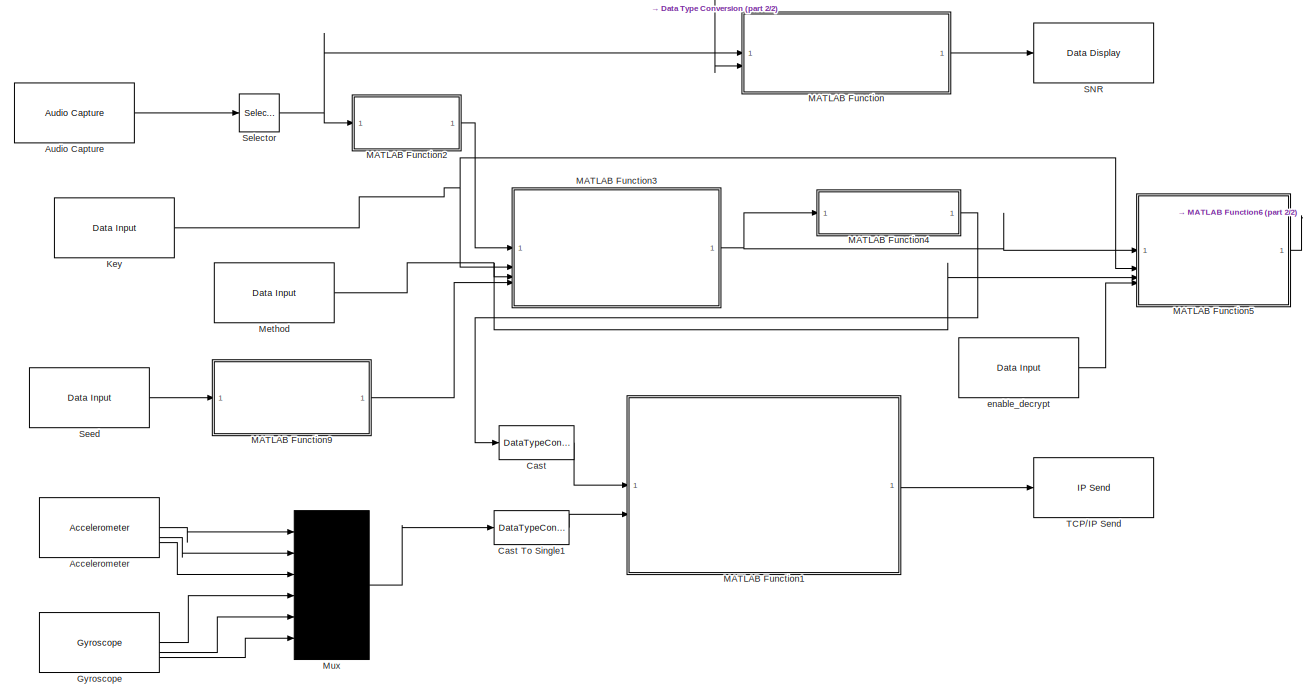
[diagram: root canvas - part 1/2, most of the canvas]
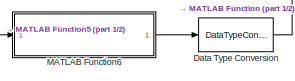
[diagram: root canvas - part 2/2, middle right region]
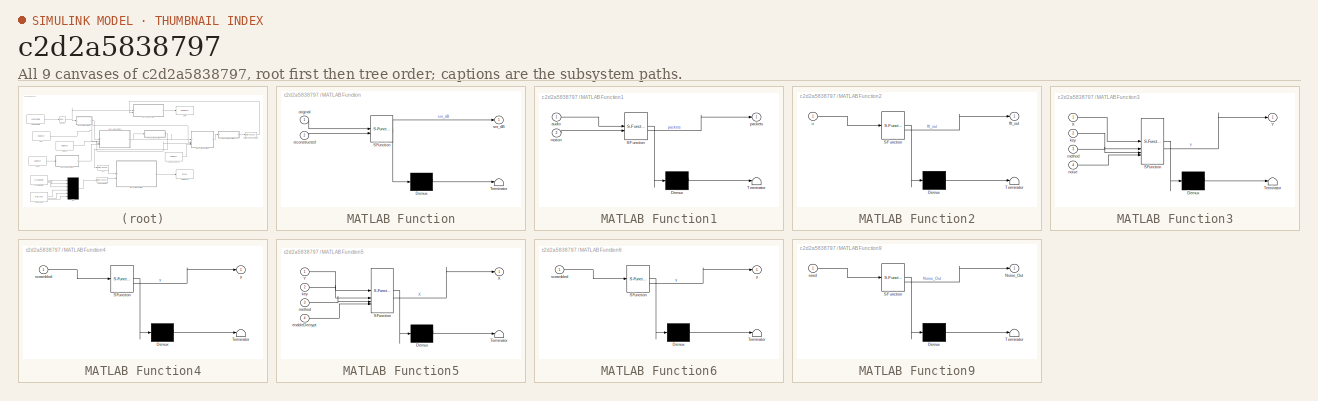
[diagram: thumbnail index - all 9 canvases of the model, root first then tree order]
MODEL slx_c2d2a5838797
KIND model
CONFIG AbsTol = auto
CONFIG EnableMultiTasking = off
CONFIG FixedStep = auto
CONFIG MaxStep = auto
CONFIG MinStep = auto
CONFIG RelTol = 1e-3
CONFIG SampleTimeConstraint = Unconstrained
CONFIG SolverName = FixedStepAuto
CONFIG StartTime = 0.0
CONFIG StopTime = 7.00
BLOCK [Reference] Accelerometer  REF=androidsensorlib/Accelerometer
  SourceBlock = androidsensorlib/Accelerometer
  SourceType = codertarget.internal.androidAccelerometer
BLOCK [Reference] Audio Capture  REF=androidaudiovideolib/Audio Capture
  SourceBlock = androidaudiovideolib/Audio Capture
  SourceType = codertarget.internal.androidAudioCapture
BLOCK [DataTypeConversion] Cast
  OutDataTypeStr = int16
  RndMeth = Floor
  SaturateOnIntegerOverflow = off
BLOCK [DataTypeConversion] Cast To Single1
  OutDataTypeStr = single
  RndMeth = Floor
  SaturateOnIntegerOverflow = off
BLOCK [DataTypeConversion] Data Type Conversion
  OutDataTypeStr = int16
  RndMeth = Floor
  SaturateOnIntegerOverflow = off
BLOCK [Reference] Gyroscope  REF=androidsensorlib/Gyroscope
  SourceBlock = androidsensorlib/Gyroscope
  SourceType = codertarget.internal.androidGyroscope
BLOCK [Reference] Key  REF=androiduilib/Data Input
  SourceBlock = androiduilib/Data Input
  SourceType = codertarget.internal.androidDataInput
BLOCK [SubSystem] MATLAB Function
  ErrorFcn = Stateflow.Translate.translate
  PermitHierarchicalResolution = ExplicitOnly
  SFBlockType = MATLAB Function
  TreatAsAtomicUnit = on
BLOCK [Demux] MATLAB Function/ Demux 
  Outputs = 1
BLOCK [S-Function] MATLAB Function/ SFunction 
  EnableBusSupport = on
  FunctionName = sf_sfun
  PortCounts = [2 2]
  SFcnIsStateOwnerBlock = off
  SFunctionDeploymentMode = off
  Tag = Stateflow S-Function 2
BLOCK [Terminator] MATLAB Function/ Terminator 
BLOCK [Inport] MATLAB Function/original
BLOCK [Inport] MATLAB Function/reconstructed
  Port = 2
BLOCK [Outport] MATLAB Function/snr_dB
BLOCK [SubSystem] MATLAB Function1
  ErrorFcn = Stateflow.Translate.translate
  LibrarySourceBlock = simulink/User-Defined\nFunctions/MATLAB Function
  PermitHierarchicalResolution = ExplicitOnly
  SFBlockType = MATLAB Function
  TreatAsAtomicUnit = on
BLOCK [Demux] MATLAB Function1/ Demux 
  Outputs = 1
BLOCK [S-Function] MATLAB Function1/ SFunction 
  EnableBusSupport = on
  FunctionName = sf_sfun
  PortCounts = [2 2]
  SFcnIsStateOwnerBlock = off
  SFunctionDeploymentMode = off
  Tag = Stateflow S-Function 1
BLOCK [Terminator] MATLAB Function1/ Terminator 
BLOCK [Inport] MATLAB Function1/audio
BLOCK [Inport] MATLAB Function1/motion
  Port = 2
BLOCK [Outport] MATLAB Function1/packets
BLOCK [SubSystem] MATLAB Function2
  ErrorFcn = Stateflow.Translate.translate
  PermitHierarchicalResolution = ExplicitOnly
  SFBlockType = MATLAB Function
  TreatAsAtomicUnit = on
BLOCK [Demux] MATLAB Function2/ Demux 
  Outputs = 1
BLOCK [S-Function] MATLAB Function2/ SFunction 
  EnableBusSupport = on
  FunctionName = sf_sfun
  PortCounts = [1 2]
  SFcnIsStateOwnerBlock = off
  SFunctionDeploymentMode = off
  Tag = Stateflow S-Function 6
BLOCK [Terminator] MATLAB Function2/ Terminator 
BLOCK [Outport] MATLAB Function2/fft_out
BLOCK [Inport] MATLAB Function2/u
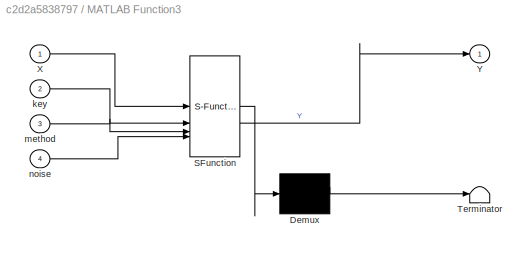
BLOCK [SubSystem] MATLAB Function3
  ErrorFcn = Stateflow.Translate.translate
  PermitHierarchicalResolution = ExplicitOnly
  SFBlockType = MATLAB Function
  TreatAsAtomicUnit = on
BLOCK [Demux] MATLAB Function3/ Demux 
  Outputs = 1
BLOCK [S-Function] MATLAB Function3/ SFunction 
  EnableBusSupport = on
  FunctionName = sf_sfun
  PortCounts = [4 2]
  SFcnIsStateOwnerBlock = off
  SFunctionDeploymentMode = off
  Tag = Stateflow S-Function 7
BLOCK [Terminator] MATLAB Function3/ Terminator 
BLOCK [Inport] MATLAB Function3/X
BLOCK [Outport] MATLAB Function3/Y
BLOCK [Inport] MATLAB Function3/key
  Port = 2
BLOCK [Inport] MATLAB Function3/method
  Port = 3
BLOCK [Inport] MATLAB Function3/noise
  Port = 4
BLOCK [SubSystem] MATLAB Function4
  ErrorFcn = Stateflow.Translate.translate
  PermitHierarchicalResolution = ExplicitOnly
  SFBlockType = MATLAB Function
  TreatAsAtomicUnit = on
BLOCK [Demux] MATLAB Function4/ Demux 
  Outputs = 1
BLOCK [S-Function] MATLAB Function4/ SFunction 
  EnableBusSupport = on
  FunctionName = sf_sfun
  PortCounts = [1 2]
  SFcnIsStateOwnerBlock = off
  SFunctionDeploymentMode = off
  Tag = Stateflow S-Function 8
BLOCK [Terminator] MATLAB Function4/ Terminator 
BLOCK [Inport] MATLAB Function4/scrambled
BLOCK [Outport] MATLAB Function4/y
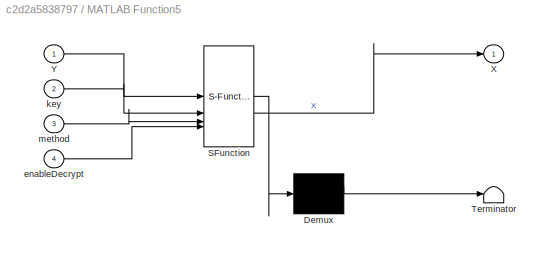
BLOCK [SubSystem] MATLAB Function5
  ErrorFcn = Stateflow.Translate.translate
  PermitHierarchicalResolution = ExplicitOnly
  SFBlockType = MATLAB Function
  TreatAsAtomicUnit = on
BLOCK [Demux] MATLAB Function5/ Demux 
  Outputs = 1
BLOCK [S-Function] MATLAB Function5/ SFunction 
  EnableBusSupport = on
  FunctionName = sf_sfun
  PortCounts = [4 2]
  SFcnIsStateOwnerBlock = off
  SFunctionDeploymentMode = off
  Tag = Stateflow S-Function 3
BLOCK [Terminator] MATLAB Function5/ Terminator 
BLOCK [Outport] MATLAB Function5/X
BLOCK [Inport] MATLAB Function5/Y
BLOCK [Inport] MATLAB Function5/enableDecrypt
  Port = 4
BLOCK [Inport] MATLAB Function5/key
  Port = 2
BLOCK [Inport] MATLAB Function5/method
  Port = 3
BLOCK [SubSystem] MATLAB Function6
  ErrorFcn = Stateflow.Translate.translate
  PermitHierarchicalResolution = ExplicitOnly
  SFBlockType = MATLAB Function
  TreatAsAtomicUnit = on
BLOCK [Demux] MATLAB Function6/ Demux 
  Outputs = 1
BLOCK [S-Function] MATLAB Function6/ SFunction 
  EnableBusSupport = on
  FunctionName = sf_sfun
  PortCounts = [1 2]
  SFcnIsStateOwnerBlock = off
  SFunctionDeploymentMode = off
  Tag = Stateflow S-Function 4
BLOCK [Terminator] MATLAB Function6/ Terminator 
BLOCK [Inport] MATLAB Function6/scrambled
BLOCK [Outport] MATLAB Function6/y
BLOCK [SubSystem] MATLAB Function9
  ErrorFcn = Stateflow.Translate.translate
  PermitHierarchicalResolution = ExplicitOnly
  SFBlockType = MATLAB Function
  TreatAsAtomicUnit = on
BLOCK [Demux] MATLAB Function9/ Demux 
  Outputs = 1
BLOCK [S-Function] MATLAB Function9/ SFunction 
  EnableBusSupport = on
  FunctionName = sf_sfun
  PortCounts = [1 2]
  SFcnIsStateOwnerBlock = off
  SFunctionDeploymentMode = off
  Tag = Stateflow S-Function 10
BLOCK [Terminator] MATLAB Function9/ Terminator 
BLOCK [Outport] MATLAB Function9/Noise_Out
BLOCK [Inport] MATLAB Function9/seed
BLOCK [Reference] Method  REF=androiduilib/Data Input
  SourceBlock = androiduilib/Data Input
  SourceType = codertarget.internal.androidDataInput
BLOCK [Mux] Mux
  DisplayOption = bar
  Inputs = 6
BLOCK [Reference] SNR  REF=androiduilib/Data Display
  SourceBlock = androiduilib/Data Display
  SourceType = codertarget.internal.androidDataDisplay
BLOCK [Reference] Seed  REF=androiduilib/Data Input
  SourceBlock = androiduilib/Data Input
  SourceType = codertarget.internal.androidDataInput
BLOCK [Selector] Selector
  IndexOptions = Select all,Index vector (dialog)
  Indices = [1 3],1
  InputPortWidth = 3
  NumberOfDimensions = 2
  OutputSizes = 1,1
BLOCK [Reference] TCP//IP Send  REF=androidcommunicationlib/TCP//IP Send
  SourceBlock = androidcommunicationlib/TCP//IP Send
  SourceType = codertarget.internal.androidTCPSend
BLOCK [Reference] enable_decrypt  REF=androiduilib/Data Input
  SourceBlock = androiduilib/Data Input
  SourceType = codertarget.internal.androidDataInput
LINE Accelerometer:1 -> Mux:1
LINE Accelerometer:2 -> Mux:2
LINE Accelerometer:3 -> Mux:3
LINE Audio Capture:1 -> Selector:1
LINE Cast To Single1:1 -> MATLAB Function1:2
LINE Cast:1 -> MATLAB Function1:1
LINE Data Type Conversion:1 -> MATLAB Function:2
LINE Gyroscope:1 -> Mux:4
LINE Gyroscope:2 -> Mux:5
LINE Gyroscope:3 -> Mux:6
NET Key:1 -> MATLAB Function3:2, MATLAB Function5:2
LINE MATLAB Function1:1 -> TCP//IP Send:1
LINE MATLAB Function2:1 -> MATLAB Function3:1
NET MATLAB Function3:1 -> MATLAB Function4:1, MATLAB Function5:1
LINE MATLAB Function4:1 -> Cast:1
LINE MATLAB Function5:1 -> MATLAB Function6:1
LINE MATLAB Function6:1 -> Data Type Conversion:1
LINE MATLAB Function9:1 -> MATLAB Function3:4
LINE MATLAB Function:1 -> SNR:1
NET Method:1 -> MATLAB Function3:3, MATLAB Function5:3
LINE Mux:1 -> Cast To Single1:1
LINE Seed:1 -> MATLAB Function9:1
NET Selector:1 -> MATLAB Function2:1, MATLAB Function:1
LINE enable_decrypt:1 -> MATLAB Function5:4
note: NET lines group one-source signal fan-out (src -> all destinations, sorted); 1:1 wires keep LINE
CHART MATLAB Function1 states=1 transitions=1
  STATE_LABEL 'eML_blk_kernel()'
  STATE_LABEL "SCRIPT:\nfunction packets = packing(audio, motion)\nassert(isa(motion,'single') && numel(motion)==6);\nassert(isa(audio,'int16') && numel(audio)==4410);\n\npackets = zeros(8844,1,'uint8');   % total = 24 + 8820\n\npackets(1:24)    = typecast(motion(:), 'uint8').';        \npackets(25:8844) = typecast(audio(:), 'uint8').';\nend\n"
CHART MATLAB Function states=1 transitions=1
  STATE_LABEL 'eML_blk_kernel()'
  STATE_LABEL 'SCRIPT:\nfunction snr_dB = computeSNR(original, reconstructed)\n\n    N = min(numel(original), numel(reconstructed));\n    x = double(original(1:N));\n    y = double(reconstructed(1:N));\n    noise = x - y;\n\n    Ps = mean(abs(x).^2);       % Signal Power\n    Pn = mean(abs(noise).^2);   % Noise Power\n\n    Ps = max(Ps, 1e-12);\n    Pn = max(Pn, 1e-12);\n\n    ratio = Ps / Pn;\n    snr_dB = 10 * log10(ratio);\n...<+30ch>'
CHART MATLAB Function5 states=1 transitions=1
  STATE_LABEL 'eML_blk_kernel()'
  STATE_LABEL "SCRIPT:\nfunction X = decryptAudio_FFT(Y, key, method, enableDecrypt)\n    [N, C] = size(Y);\n    X = complex(zeros(N, C, 'like', Y));\n    \n    if nargin < 4 || enableDecrypt == 0\n        X = Y; return;\n    end\n    \n    if ischar(key) || isstring(key)\n        keyChar = double(char(key));\n        keynum = sum(keyChar .* (1:length(keyChar))); \n    else\n        keynum = double(key);\n    end\n    seedVal ...<+1822ch>"
CHART MATLAB Function6 states=1 transitions=1
  STATE_LABEL 'eML_blk_kernel()'
  STATE_LABEL 'SCRIPT:\nfunction y = IFFT(scrambled)\n    N = length(scrambled);\n    scrambled(2:N/2) = conj(scrambled(N:-1:N/2+2));\n    Channel = ifft(scrambled);\n    y = real(Channel);\nend'
CHART MATLAB Function2 states=1 transitions=1
  STATE_LABEL 'eML_blk_kernel()'
  STATE_LABEL 'SCRIPT:\nfunction fft_out = FFT(u)\n    u = u(:,1);\n    fft_out = fft(double(u));\nend'
CHART MATLAB Function3 states=1 transitions=1
  STATE_LABEL 'eML_blk_kernel()'
  STATE_LABEL 'SCRIPT:\nfunction Y = encryptAudio_Sender(X, key, method, noise)\n    [N, C] = size(X);\n    \n    if size(noise, 1) ~= N\n        noise_safe = complex(zeros(N, C)); \n    else\n        noise_safe = noise;\n    end\n\n    if ischar(key) || isstring(key)\n        keyChar = double(char(key));\n        keynum = sum(keyChar .* (1:length(keyChar))); \n    else\n        keynum = double(key);\n    end\n    seedVal = max...<+1816ch>'
CHART MATLAB Function4 states=1 transitions=1
  STATE_LABEL 'eML_blk_kernel()'
  STATE_LABEL 'SCRIPT:\nfunction y = IFFT(scrambled)\n    N = length(scrambled);\n    scrambled(2:N/2) = conj(scrambled(N:-1:N/2+2));\n    Channel = ifft(scrambled);\n    y = real(Channel);\nend'
CHART MATLAB Function9 states=1 transitions=1
  STATE_LABEL 'eML_blk_kernel()'
  STATE_LABEL "SCRIPT:\nfunction Noise_Out = generate_watermark_noise(seed)\n    % --- 1. Constants ---\n    N = 4410; \n    Fs = 44100;\n    df = Fs / N; % ~21.5 Hz per bin\n    \n    f_start_hz = 200;\n    f_end_hz   = 15000;\n    \n    alpha = 5000; \n\n    % --- 2. Identify Target Bins ---\n    idx_start = floor(f_start_hz / df) + 1;\n    idx_end   = ceil(f_end_hz / df) + 1;\n    \n    % Clamp to Nyquist (Ensure we don't ex...<+999ch>"
CHART  states=0 transitions=0
CHART  states=0 transitions=0
CHART  states=0 transitions=0
CHART  states=0 transitions=0
CHART  states=0 transitions=0
CHART  states=0 transitions=0
CHART  states=0 transitions=0
CHART  states=0 transitions=0
